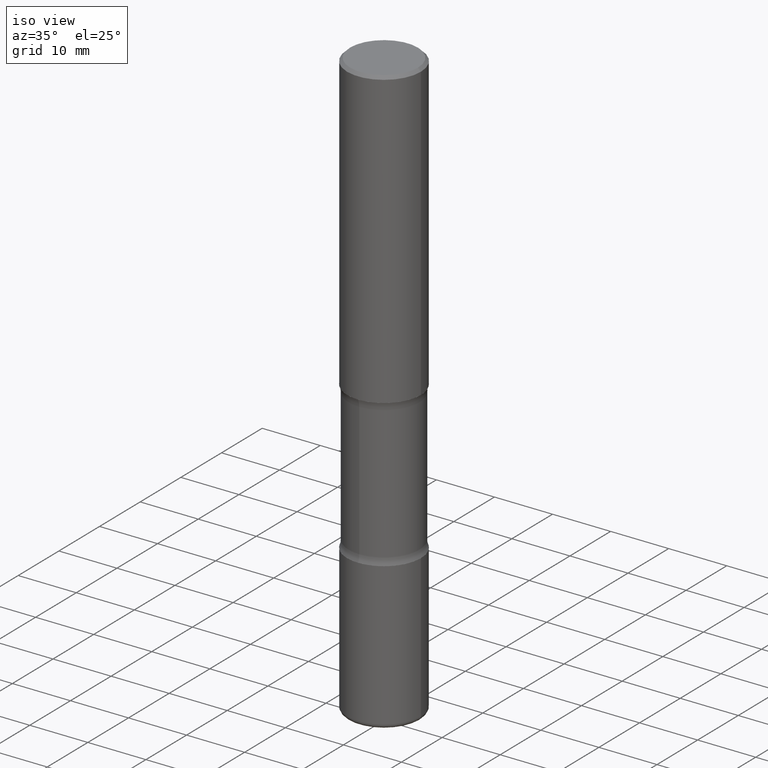
[diagram: clean part render]
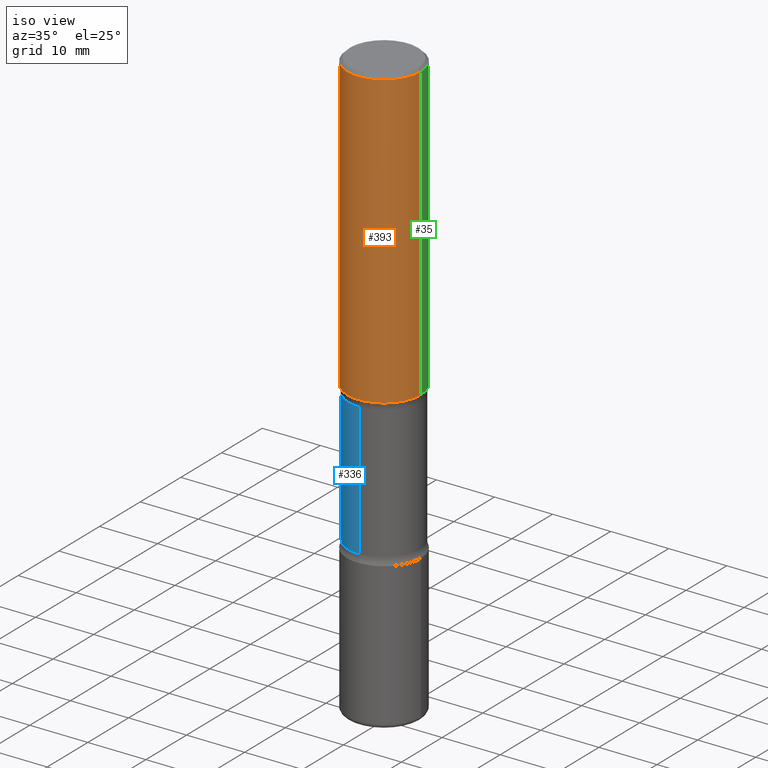
[diagram: same view with three faces highlighted in distinct colors, each labeled with its STEP entity id]
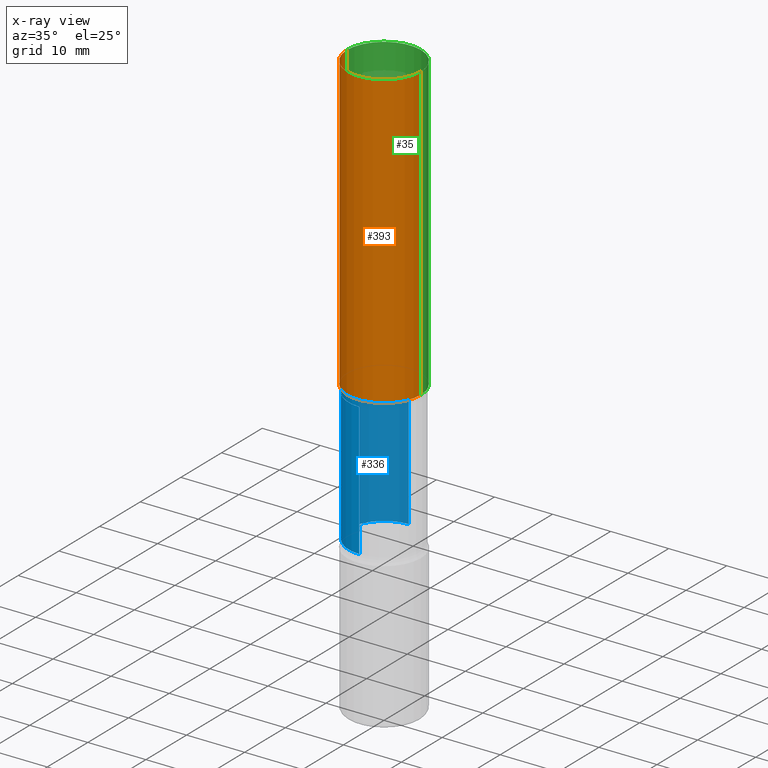
[diagram: x-ray of the same camera — body ghosted, the three highlighted faces saturated]
A machine part, iso view with three faces highlighted in distinct colors.
The next image is the same camera in x-ray (body ghosted, the three faces saturated) — at least one of them is partly hidden behind the body in this view.
Their STEP definitions:

[orange] entity #393 — the highlighted cylindrical surface (partial cylindrical patch) has radius 6.35 mm, axis along (-0, 0, 1).
#4 = CARTESIAN_POINT ( 'NONE',  ( 0.2500000000000000000, -1.745740669421566678E-15, 1.219044193948983948E-29 ) ) ;
#18 = DIRECTION ( 'NONE',  ( -2.445468806185136597E-29, 3.491481338843145583E-15, 1.000000000000000000 ) ) ;
#24 = DIRECTION ( 'NONE',  ( 1.000000000000000000, -6.982962677686268288E-15, 0.000000000000000000 ) ) ;
#29 = LINE ( 'NONE', #122, #73 ) ;
#36 = CARTESIAN_POINT ( 'NONE',  ( 0.2500000000000002220, -8.728703347107860209E-15, -2.000000000000000000 ) ) ;
#41 = CIRCLE ( 'NONE', #289, 0.2499999999999997502 ) ;
#65 = VERTEX_POINT ( 'NONE', #133 ) ;
#68 = CARTESIAN_POINT ( 'NONE',  ( 4.890937612370273194E-29, -6.982962677686291165E-15, -2.000000000000000000 ) ) ;
#73 = VECTOR ( 'NONE', #457, 39.37007874015748143 ) ;
#92 = ORIENTED_EDGE ( 'NONE', *, *, #367, .T. ) ;
#99 = VERTEX_POINT ( 'NONE', #407 ) ;
#115 = EDGE_CURVE ( 'NONE', #251, #65, #445, .T. ) ;
#122 = CARTESIAN_POINT ( 'NONE',  ( -0.2500000000000000000, 1.776356839400250465E-15, -1.229733772563726445E-29 ) ) ;
#133 = CARTESIAN_POINT ( 'NONE',  ( 0.2499999999999997502, -1.784954126219744217E-15, -0.02000000000000006981 ) ) ;
#162 = EDGE_LOOP ( 'NONE', ( #334, #92, #298, #165 ) ) ;
#165 = ORIENTED_EDGE ( 'NONE', *, *, #502, .F. ) ;
#200 = AXIS2_PLACEMENT_3D ( 'NONE', #68, #473, #24 ) ;
#236 = FACE_OUTER_BOUND ( 'NONE', #162, .T. ) ;
#251 = VERTEX_POINT ( 'NONE', #36 ) ;
#258 = DIRECTION ( 'NONE',  ( 1.000000000000000000, -6.982962677686267499E-15, 0.000000000000000000 ) ) ;
#271 = DIRECTION ( 'NONE',  ( -2.445468806185136877E-29, 3.491481338843145188E-15, 1.000000000000000000 ) ) ;
#274 = CARTESIAN_POINT ( 'NONE',  ( 0.000000000000000000, 0.000000000000000000, 0.000000000000000000 ) ) ;
#289 = AXIS2_PLACEMENT_3D ( 'NONE', #353, #397, #258 ) ;
#298 = ORIENTED_EDGE ( 'NONE', *, *, #115, .T. ) ;
#332 = EDGE_CURVE ( 'NONE', #99, #379, #29, .T. ) ;
#334 = ORIENTED_EDGE ( 'NONE', *, *, #332, .F. ) ;
#338 = DIRECTION ( 'NONE',  ( 1.000000000000000000, -6.982962677686266711E-15, 4.876176775795935793E-29 ) ) ;
#353 = CARTESIAN_POINT ( 'NONE',  ( 4.890937612370289799E-31, -6.982962677686315028E-17, -0.02000000000000006981 ) ) ;
#362 = AXIS2_PLACEMENT_3D ( 'NONE', #274, #18, #338 ) ;
#367 = EDGE_CURVE ( 'NONE', #99, #251, #451, .T. ) ;
#379 = VERTEX_POINT ( 'NONE', #545 ) ;
#393 = ADVANCED_FACE ( 'NONE', ( #236 ), #417, .T. ) ;
#397 = DIRECTION ( 'NONE',  ( -2.445468806185136597E-29, 3.491481338843145583E-15, 1.000000000000000000 ) ) ;
#407 = CARTESIAN_POINT ( 'NONE',  ( -0.2500000000000002220, -1.750039312831321837E-15, -2.000000000000000000 ) ) ;
#417 = CYLINDRICAL_SURFACE ( 'NONE', #362, 0.2500000000000000000 ) ;
#445 = LINE ( 'NONE', #4, #472 ) ;
#451 = CIRCLE ( 'NONE', #200, 0.2500000000000002220 ) ;
#457 = DIRECTION ( 'NONE',  ( -2.445468806185136877E-29, 3.491481338843145188E-15, 1.000000000000000000 ) ) ;
#472 = VECTOR ( 'NONE', #271, 39.37007874015748143 ) ;
#473 = DIRECTION ( 'NONE',  ( -2.445468806185136597E-29, 3.491481338843145583E-15, 1.000000000000000000 ) ) ;
#502 = EDGE_CURVE ( 'NONE', #379, #65, #41, .T. ) ;
#545 = CARTESIAN_POINT ( 'NONE',  ( -0.2499999999999997502, 1.675911042644701999E-15, -0.02000000000000006981 ) ) ;

[blue] entity #336 — the highlighted cylindrical surface (partial cylindrical patch) has radius 6.096 mm, axis along (0, -0, -1).
#3 = ORIENTED_EDGE ( 'NONE', *, *, #542, .F. ) ;
#22 = VERTEX_POINT ( 'NONE', #197 ) ;
#33 = CARTESIAN_POINT ( 'NONE',  ( -1.646519519465069149E-15, -0.2400000000000138967, -3.999999999999998668 ) ) ;
#49 = VECTOR ( 'NONE', #91, 39.37007874015748143 ) ;
#50 = CARTESIAN_POINT ( 'NONE',  ( 5.169481762701493351E-29, -6.926683291641790899E-15, -2.048989794855664126 ) ) ;
#55 = DIRECTION ( 'NONE',  ( 6.982962677686265922E-15, 1.000000000000000000, -4.553079989440442247E-15 ) ) ;
#57 = CARTESIAN_POINT ( 'NONE',  ( 1.675911042644774969E-15, 0.2399999999999895550, -2.951010205144337206 ) ) ;
#91 = DIRECTION ( 'NONE',  ( 2.278550371102527067E-29, -3.730518038288768294E-15, -1.000000000000000000 ) ) ;
#93 = DIRECTION ( 'NONE',  ( 2.278550371102527067E-29, -3.730518038288768294E-15, -1.000000000000000000 ) ) ;
#95 = ORIENTED_EDGE ( 'NONE', *, *, #157, .T. ) ;
#119 = CIRCLE ( 'NONE', #221, 0.2399999999999996025 ) ;
#134 = AXIS2_PLACEMENT_3D ( 'NONE', #425, #282, #381 ) ;
#138 = CARTESIAN_POINT ( 'NONE',  ( 1.675911042644797846E-15, 0.2399999999999854750, -4.000000000000000888 ) ) ;
#140 = VERTEX_POINT ( 'NONE', #488 ) ;
#155 = DIRECTION ( 'NONE',  ( 2.278550371102527067E-29, -3.730518038288768294E-15, -1.000000000000000000 ) ) ;
#157 = EDGE_CURVE ( 'NONE', #344, #412, #359, .T. ) ;
#159 = ORIENTED_EDGE ( 'NONE', *, *, #441, .F. ) ;
#188 = CARTESIAN_POINT ( 'NONE',  ( 7.224780703306799164E-29, -1.029168670312831509E-14, -2.951010205144335874 ) ) ;
#197 = CARTESIAN_POINT ( 'NONE',  ( -1.680822009453952452E-15, -0.2400000000000101497, -2.951010205144334986 ) ) ;
#204 = CYLINDRICAL_SURFACE ( 'NONE', #134, 0.2399999999999996858 ) ;
#221 = AXIS2_PLACEMENT_3D ( 'NONE', #50, #530, #325 ) ;
#243 = FACE_OUTER_BOUND ( 'NONE', #363, .T. ) ;
#245 = ORIENTED_EDGE ( 'NONE', *, *, #526, .T. ) ;
#275 = VECTOR ( 'NONE', #93, 39.37007874015748143 ) ;
#282 = DIRECTION ( 'NONE',  ( 2.278550371102527067E-29, -3.730518038288768294E-15, -1.000000000000000000 ) ) ;
#325 = DIRECTION ( 'NONE',  ( 6.982962677686265922E-15, 1.000000000000000000, -3.414809992080334644E-15 ) ) ;
#336 = ADVANCED_FACE ( 'NONE', ( #243 ), #204, .T. ) ;
#344 = VERTEX_POINT ( 'NONE', #541 ) ;
#359 = LINE ( 'NONE', #138, #49 ) ;
#363 = EDGE_LOOP ( 'NONE', ( #159, #245, #95, #3 ) ) ;
#381 = DIRECTION ( 'NONE',  ( 6.982962677686265922E-15, 1.000000000000000000, -4.553079989440444614E-15 ) ) ;
#399 = AXIS2_PLACEMENT_3D ( 'NONE', #188, #155, #55 ) ;
#412 = VERTEX_POINT ( 'NONE', #57 ) ;
#425 = CARTESIAN_POINT ( 'NONE',  ( 9.614956789657936857E-29, -1.420496205481820465E-14, -4.000000000000000000 ) ) ;
#441 = EDGE_CURVE ( 'NONE', #140, #22, #462, .T. ) ;
#461 = CIRCLE ( 'NONE', #399, 0.2399999999999998246 ) ;
#462 = LINE ( 'NONE', #33, #275 ) ;
#488 = CARTESIAN_POINT ( 'NONE',  ( -1.680822009453972371E-15, -0.2400000000000065692, -2.048989794855663238 ) ) ;
#526 = EDGE_CURVE ( 'NONE', #140, #344, #119, .T. ) ;
#530 = DIRECTION ( 'NONE',  ( 2.278550371102527067E-29, -3.730518038288768294E-15, -1.000000000000000000 ) ) ;
#541 = CARTESIAN_POINT ( 'NONE',  ( 1.675911042644752683E-15, 0.2399999999999926636, -2.048989794855665014 ) ) ;
#542 = EDGE_CURVE ( 'NONE', #22, #412, #461, .T. ) ;

[green] entity #35 — the highlighted cylindrical surface (partial cylindrical patch) has radius 6.35 mm, axis along (-0, 0, 1).
#4 = CARTESIAN_POINT ( 'NONE',  ( 0.2500000000000000000, -1.745740669421566678E-15, 1.219044193948983948E-29 ) ) ;
#7 = CIRCLE ( 'NONE', #202, 0.2499999999999997502 ) ;
#29 = LINE ( 'NONE', #122, #73 ) ;
#35 = ADVANCED_FACE ( 'NONE', ( #90 ), #213, .T. ) ;
#36 = CARTESIAN_POINT ( 'NONE',  ( 0.2500000000000002220, -8.728703347107860209E-15, -2.000000000000000000 ) ) ;
#39 = CIRCLE ( 'NONE', #191, 0.2500000000000002220 ) ;
#46 = ORIENTED_EDGE ( 'NONE', *, *, #226, .T. ) ;
#47 = DIRECTION ( 'NONE',  ( -2.445468806185136597E-29, 3.491481338843145583E-15, 1.000000000000000000 ) ) ;
#65 = VERTEX_POINT ( 'NONE', #133 ) ;
#73 = VECTOR ( 'NONE', #457, 39.37007874015748143 ) ;
#90 = FACE_OUTER_BOUND ( 'NONE', #303, .T. ) ;
#99 = VERTEX_POINT ( 'NONE', #407 ) ;
#115 = EDGE_CURVE ( 'NONE', #251, #65, #445, .T. ) ;
#122 = CARTESIAN_POINT ( 'NONE',  ( -0.2500000000000000000, 1.776356839400250465E-15, -1.229733772563726445E-29 ) ) ;
#133 = CARTESIAN_POINT ( 'NONE',  ( 0.2499999999999997502, -1.784954126219744217E-15, -0.02000000000000006981 ) ) ;
#191 = AXIS2_PLACEMENT_3D ( 'NONE', #364, #47, #324 ) ;
#202 = AXIS2_PLACEMENT_3D ( 'NONE', #411, #283, #321 ) ;
#206 = DIRECTION ( 'NONE',  ( -2.445468806185136597E-29, 3.491481338843145583E-15, 1.000000000000000000 ) ) ;
#213 = CYLINDRICAL_SURFACE ( 'NONE', #537, 0.2500000000000000000 ) ;
#226 = EDGE_CURVE ( 'NONE', #251, #99, #39, .T. ) ;
#251 = VERTEX_POINT ( 'NONE', #36 ) ;
#261 = ORIENTED_EDGE ( 'NONE', *, *, #550, .F. ) ;
#271 = DIRECTION ( 'NONE',  ( -2.445468806185136877E-29, 3.491481338843145188E-15, 1.000000000000000000 ) ) ;
#278 = ORIENTED_EDGE ( 'NONE', *, *, #115, .F. ) ;
#280 = ORIENTED_EDGE ( 'NONE', *, *, #332, .T. ) ;
#283 = DIRECTION ( 'NONE',  ( -2.445468806185136597E-29, 3.491481338843145583E-15, 1.000000000000000000 ) ) ;
#303 = EDGE_LOOP ( 'NONE', ( #46, #280, #261, #278 ) ) ;
#321 = DIRECTION ( 'NONE',  ( 1.000000000000000000, -6.982962677686267499E-15, 0.000000000000000000 ) ) ;
#324 = DIRECTION ( 'NONE',  ( 1.000000000000000000, -6.982962677686268288E-15, 0.000000000000000000 ) ) ;
#332 = EDGE_CURVE ( 'NONE', #99, #379, #29, .T. ) ;
#351 = DIRECTION ( 'NONE',  ( 1.000000000000000000, -6.982962677686266711E-15, 4.876176775795935793E-29 ) ) ;
#364 = CARTESIAN_POINT ( 'NONE',  ( 4.890937612370273194E-29, -6.982962677686291165E-15, -2.000000000000000000 ) ) ;
#379 = VERTEX_POINT ( 'NONE', #545 ) ;
#407 = CARTESIAN_POINT ( 'NONE',  ( -0.2500000000000002220, -1.750039312831321837E-15, -2.000000000000000000 ) ) ;
#411 = CARTESIAN_POINT ( 'NONE',  ( 4.890937612370289799E-31, -6.982962677686315028E-17, -0.02000000000000006981 ) ) ;
#445 = LINE ( 'NONE', #4, #472 ) ;
#457 = DIRECTION ( 'NONE',  ( -2.445468806185136877E-29, 3.491481338843145188E-15, 1.000000000000000000 ) ) ;
#472 = VECTOR ( 'NONE', #271, 39.37007874015748143 ) ;
#506 = CARTESIAN_POINT ( 'NONE',  ( 0.000000000000000000, 0.000000000000000000, 0.000000000000000000 ) ) ;
#537 = AXIS2_PLACEMENT_3D ( 'NONE', #506, #206, #351 ) ;
#545 = CARTESIAN_POINT ( 'NONE',  ( -0.2499999999999997502, 1.675911042644701999E-15, -0.02000000000000006981 ) ) ;
#550 = EDGE_CURVE ( 'NONE', #65, #379, #7, .T. ) ;